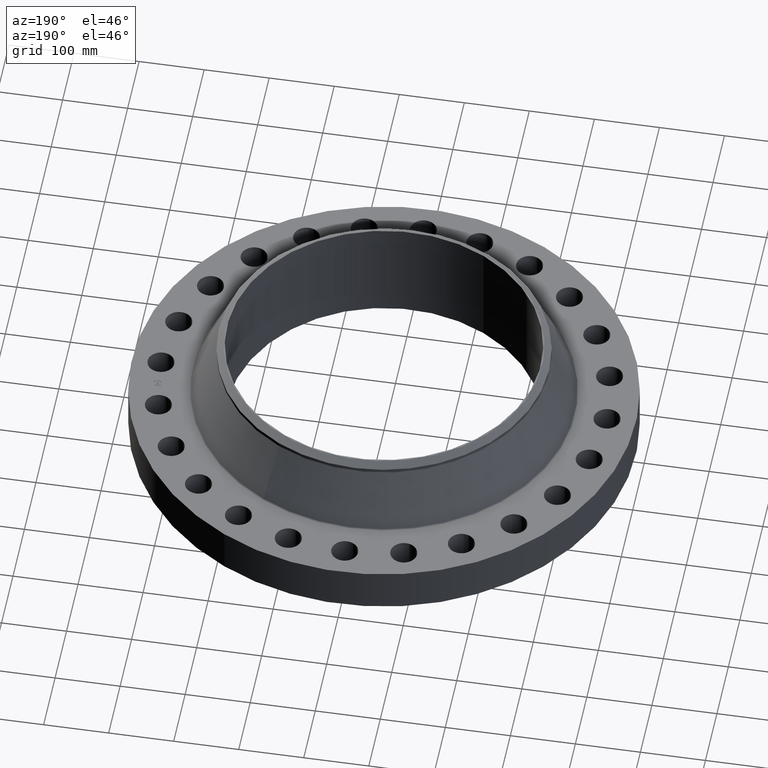
[diagram: clean part render]
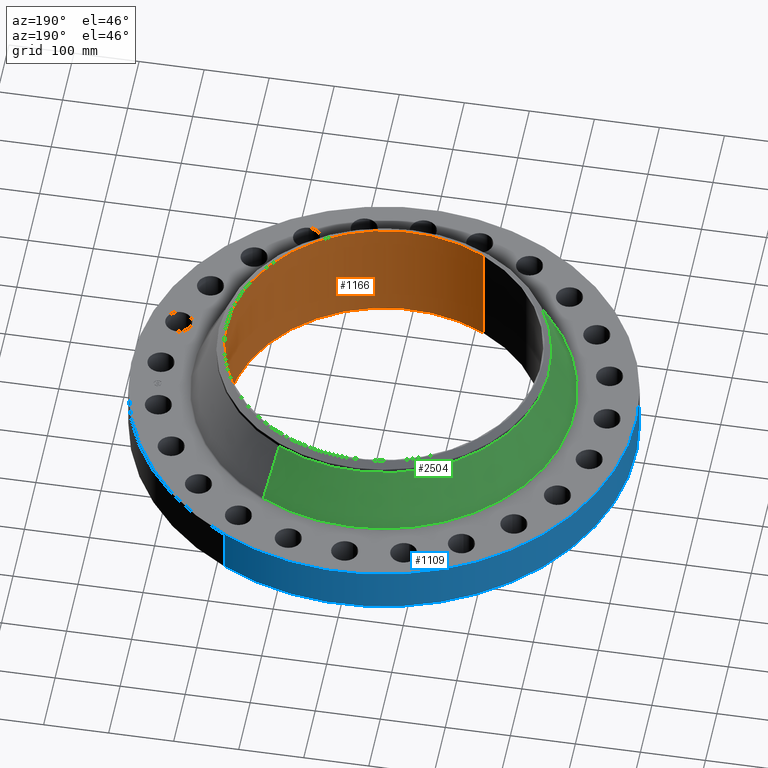
[diagram: same view with three faces highlighted in distinct colors, each labeled with its STEP entity id]
A machine part, auxiliary view with three faces highlighted in distinct colors.
Their STEP definitions:

[orange] entity #1166 — the highlighted cylindrical surface (partial cylindrical patch) has radius 241.3 mm, axis along (0, 0, -1).
#165=AXIS2_PLACEMENT_3D('Circle Axis2P3D',#163,#164,$) ;
#1139=AXIS2_PLACEMENT_3D('Cylinder Axis2P3D',#1136,#1137,#1138) ;
#1143=AXIS2_PLACEMENT_3D('Circle Axis2P3D',#1141,#1142,$) ;
#163=CARTESIAN_POINT('Axis2P3D Location',(3.08509823112E-011,-6.18899507321E-012,0.)) ;
#167=CARTESIAN_POINT('Vertex',(4.55454261676,8.33703433799,-2.75466788487E-011)) ;
#169=CARTESIAN_POINT('Vertex',(-4.55454261676,-8.33703433799,-7.04947911069E-014)) ;
#1136=CARTESIAN_POINT('Axis2P3D Location',(0.,0.,3.31000000001)) ;
#1141=CARTESIAN_POINT('Axis2P3D Location',(0.,0.,6.62000000005)) ;
#1145=CARTESIAN_POINT('Vertex',(4.55454261673,8.33703433801,6.62000000003)) ;
#1147=CARTESIAN_POINT('Vertex',(-4.55454261673,-8.33703433801,6.62000000003)) ;
#1150=CARTESIAN_POINT('Line Origine',(4.55454261676,8.33703433799,3.31000000001)) ;
#1155=CARTESIAN_POINT('Line Origine',(-4.55454261676,-8.33703433799,3.31000000001)) ;
#164=DIRECTION('Axis2P3D Direction',(0.,0.,-0.0393700787402)) ;
#1137=DIRECTION('Axis2P3D Direction',(0.,0.,-0.0393700787402)) ;
#1138=DIRECTION('Axis2P3D XDirection',(0.0188750212049,0.0345504945626,0.)) ;
#1142=DIRECTION('Axis2P3D Direction',(0.,0.,-0.0393700787402)) ;
#1151=DIRECTION('Vector Direction',(0.,0.,-0.0393700787402)) ;
#1156=DIRECTION('Vector Direction',(0.,0.,-0.0393700787402)) ;
#1152=VECTOR('Line Direction',#1151,0.0393700787402) ;
#1157=VECTOR('Line Direction',#1156,0.0393700787402) ;
#1161=ORIENTED_EDGE('',*,*,#1149,.F.) ;
#1162=ORIENTED_EDGE('',*,*,#1154,.T.) ;
#1163=ORIENTED_EDGE('',*,*,#171,.T.) ;
#1164=ORIENTED_EDGE('',*,*,#1159,.F.) ;
#1166=ADVANCED_FACE('PartBody',(#1165),#1140,.F.) ;
#166=CIRCLE('generated circle',#165,9.50000000004) ;
#1144=CIRCLE('generated circle',#1143,9.50000000004) ;
#1140=CYLINDRICAL_SURFACE('generated cylinder',#1139,9.50000000004) ;
#171=EDGE_CURVE('',#168,#170,#166,.T.) ;
#1149=EDGE_CURVE('',#1146,#1148,#1144,.T.) ;
#1154=EDGE_CURVE('',#1146,#168,#1153,.T.) ;
#1159=EDGE_CURVE('',#1148,#170,#1158,.T.) ;
#1160=EDGE_LOOP('',(#1161,#1162,#1163,#1164)) ;
#1165=FACE_OUTER_BOUND('',#1160,.T.) ;
#1153=LINE('Line',#1150,#1152) ;
#1158=LINE('Line',#1155,#1157) ;
#168=VERTEX_POINT('',#167) ;
#170=VERTEX_POINT('',#169) ;
#1146=VERTEX_POINT('',#1145) ;
#1148=VERTEX_POINT('',#1147) ;

[blue] entity #1109 — the highlighted cylindrical surface (partial cylindrical patch) has radius 387.35 mm, axis along (0, 0, -1).
#143=AXIS2_PLACEMENT_3D('Circle Axis2P3D',#141,#142,$) ;
#619=AXIS2_PLACEMENT_3D('Circle Axis2P3D',#617,#618,$) ;
#1091=AXIS2_PLACEMENT_3D('Cylinder Axis2P3D',#1088,#1089,#1090) ;
#141=CARTESIAN_POINT('Axis2P3D Location',(-4.47585975282E-015,1.0665973791E-011,0.)) ;
#145=CARTESIAN_POINT('Vertex',(-7.31123946377,-13.3831340689,2.23792987641E-015)) ;
#147=CARTESIAN_POINT('Vertex',(7.31123946377,13.3831340689,-2.75466788487E-011)) ;
#612=CARTESIAN_POINT('Vertex',(7.31123946375,13.3831340689,2.75000000003)) ;
#614=CARTESIAN_POINT('Vertex',(-7.31123946377,-13.3831340689,2.75000000003)) ;
#617=CARTESIAN_POINT('Axis2P3D Location',(1.28099106126E-011,-2.33192293122E-012,2.75000000001)) ;
#1088=CARTESIAN_POINT('Axis2P3D Location',(0.,0.,3.31000000001)) ;
#1093=CARTESIAN_POINT('Line Origine',(-7.31123946377,-13.3831340689,1.375)) ;
#1098=CARTESIAN_POINT('Line Origine',(7.31123946377,13.3831340689,1.375)) ;
#142=DIRECTION('Axis2P3D Direction',(0.,0.,-0.0393700787402)) ;
#618=DIRECTION('Axis2P3D Direction',(0.,0.,-0.0393700787402)) ;
#1089=DIRECTION('Axis2P3D Direction',(0.,0.,-0.0393700787402)) ;
#1090=DIRECTION('Axis2P3D XDirection',(-0.0188750212049,-0.0345504945626,0.)) ;
#1094=DIRECTION('Vector Direction',(0.,0.,-0.0393700787402)) ;
#1099=DIRECTION('Vector Direction',(0.,0.,-0.0393700787402)) ;
#1095=VECTOR('Line Direction',#1094,0.0393700787402) ;
#1100=VECTOR('Line Direction',#1099,0.0393700787402) ;
#1104=ORIENTED_EDGE('',*,*,#149,.F.) ;
#1105=ORIENTED_EDGE('',*,*,#1097,.T.) ;
#1106=ORIENTED_EDGE('',*,*,#621,.T.) ;
#1107=ORIENTED_EDGE('',*,*,#1102,.F.) ;
#1109=ADVANCED_FACE('PartBody',(#1108),#1092,.T.) ;
#144=CIRCLE('generated circle',#143,15.2500000001) ;
#620=CIRCLE('generated circle',#619,15.2500000001) ;
#1092=CYLINDRICAL_SURFACE('generated cylinder',#1091,15.2500000001) ;
#149=EDGE_CURVE('',#146,#148,#144,.T.) ;
#621=EDGE_CURVE('',#615,#613,#620,.T.) ;
#1097=EDGE_CURVE('',#146,#615,#1096,.F.) ;
#1102=EDGE_CURVE('',#148,#613,#1101,.F.) ;
#1103=EDGE_LOOP('',(#1104,#1105,#1106,#1107)) ;
#1108=FACE_OUTER_BOUND('',#1103,.T.) ;
#1096=LINE('Line',#1093,#1095) ;
#1101=LINE('Line',#1098,#1100) ;
#146=VERTEX_POINT('',#145) ;
#148=VERTEX_POINT('',#147) ;
#613=VERTEX_POINT('',#612) ;
#615=VERTEX_POINT('',#614) ;

[green] entity #2504 — the highlighted conical surface has half-angle 25.231 deg.
#2316=AXIS2_PLACEMENT_3D('Circle Axis2P3D',#2314,#2315,$) ;
#2477=AXIS2_PLACEMENT_3D('Cone Axis2P3D',#2474,#2475,#2476) ;
#2488=AXIS2_PLACEMENT_3D('Circle Axis2P3D',#2486,#2487,$) ;
#2311=CARTESIAN_POINT('Vertex',(-5.52660535107,-10.1163832379,2.81884796279)) ;
#2314=CARTESIAN_POINT('Axis2P3D Location',(0.,0.,2.81884796278)) ;
#2318=CARTESIAN_POINT('Vertex',(5.52660535107,10.1163832379,2.81884796278)) ;
#2474=CARTESIAN_POINT('Axis2P3D Location',(0.,0.,6.06053548147)) ;
#2479=CARTESIAN_POINT('Line Origine',(-5.16043036856,-9.44610442839,4.43969172212)) ;
#2483=CARTESIAN_POINT('Vertex',(-4.79425538604,-8.7758256189,6.06053548147)) ;
#2486=CARTESIAN_POINT('Axis2P3D Location',(0.,0.,6.06053548147)) ;
#2490=CARTESIAN_POINT('Vertex',(4.79425538605,8.77582561891,6.06053548145)) ;
#2493=CARTESIAN_POINT('Line Origine',(5.16043036856,9.44610442839,4.43969172212)) ;
#2315=DIRECTION('Axis2P3D Direction',(-0.,0.,-0.0393700787402)) ;
#2475=DIRECTION('Axis2P3D Direction',(0.,0.,-0.0393700787402)) ;
#2476=DIRECTION('Axis2P3D XDirection',(-0.0188750212049,-0.0345504945626,0.)) ;
#2480=DIRECTION('Vector Direction',(-0.00804579822596,-0.014727734864,-0.0356140710491)) ;
#2487=DIRECTION('Axis2P3D Direction',(-0.,0.,-0.0393700787402)) ;
#2494=DIRECTION('Vector Direction',(0.00804579822596,0.014727734864,-0.0356140710491)) ;
#2481=VECTOR('Line Direction',#2480,0.0393700787402) ;
#2495=VECTOR('Line Direction',#2494,0.0393700787402) ;
#2499=ORIENTED_EDGE('',*,*,#2320,.F.) ;
#2500=ORIENTED_EDGE('',*,*,#2485,.T.) ;
#2501=ORIENTED_EDGE('',*,*,#2492,.T.) ;
#2502=ORIENTED_EDGE('',*,*,#2497,.F.) ;
#2504=ADVANCED_FACE('PartBody',(#2503),#2478,.T.) ;
#2317=CIRCLE('generated circle',#2316,11.5275572661) ;
#2489=CIRCLE('generated circle',#2488,10.) ;
#2478=CONICAL_SURFACE('Cone',#2477,10.,0.440362021604) ;
#2320=EDGE_CURVE('',#2312,#2319,#2317,.T.) ;
#2485=EDGE_CURVE('',#2312,#2484,#2482,.F.) ;
#2492=EDGE_CURVE('',#2484,#2491,#2489,.T.) ;
#2497=EDGE_CURVE('',#2319,#2491,#2496,.F.) ;
#2498=EDGE_LOOP('',(#2499,#2500,#2501,#2502)) ;
#2503=FACE_OUTER_BOUND('',#2498,.T.) ;
#2482=LINE('Line',#2479,#2481) ;
#2496=LINE('Line',#2493,#2495) ;
#2312=VERTEX_POINT('',#2311) ;
#2319=VERTEX_POINT('',#2318) ;
#2484=VERTEX_POINT('',#2483) ;
#2491=VERTEX_POINT('',#2490) ;